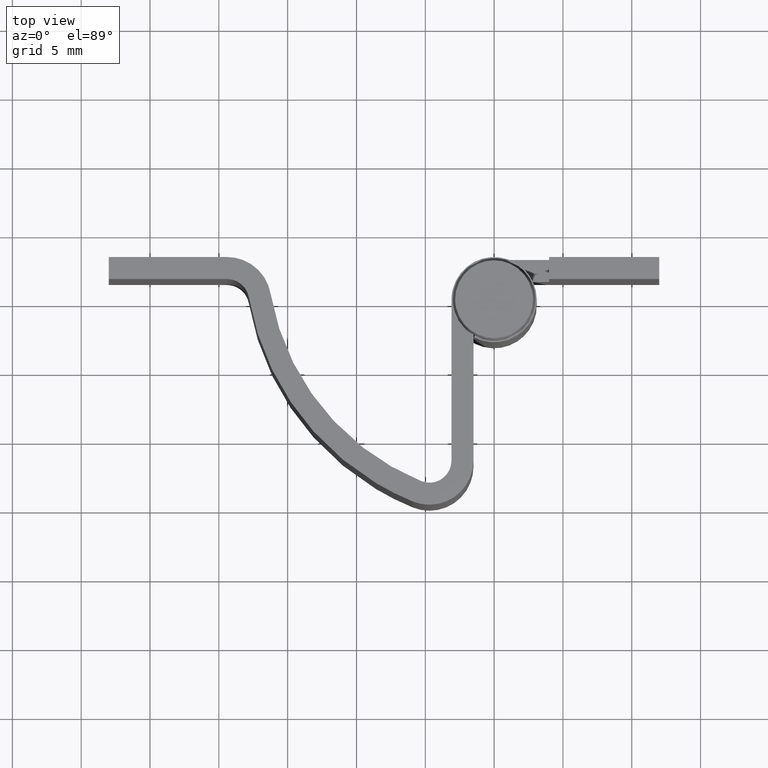
[diagram: clean part render]
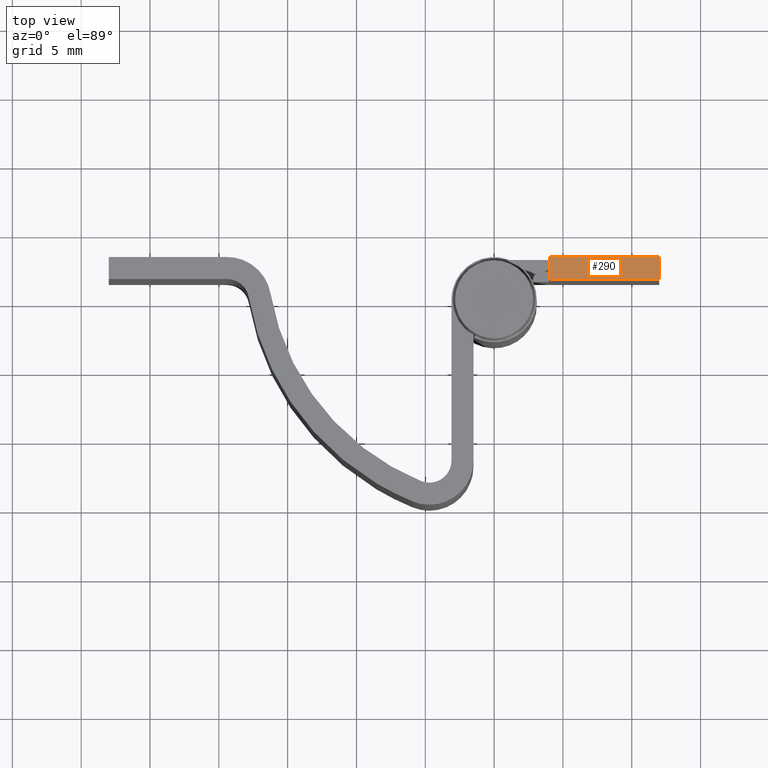
[diagram: same view with one face highlighted and labeled with its STEP entity id]
A machine part, top view. The second image highlights one B-rep face of the part: STEP entity #290.
In plain terms, the highlighted face is a freeform B-spline surface patch.
Its self-contained STEP definition (entity closure, byte-faithful):
#142=CARTESIAN_POINT('',(4.0,1.500000000000085,28.000008000000001));
#143=VERTEX_POINT('',#142);
#144=CARTESIAN_POINT('',(4.0,3.099998000000000,28.000008000000001));
#145=VERTEX_POINT('',#144);
#146=CARTESIAN_POINT('',(4.0,1.500000000000085,28.000008000000001));
#147=CARTESIAN_POINT('',(4.0,3.099998000000000,28.000008000000001));
#148=QUASI_UNIFORM_CURVE('',1,(#146,#147),.UNSPECIFIED.,.F.,.U.);
#149=EDGE_CURVE('',#143,#145,#148,.T.);
#249=CARTESIAN_POINT('',(12.0,3.099998000000000,28.000008000000001));
#250=VERTEX_POINT('',#249);
#256=CARTESIAN_POINT('',(12.0,1.500000000000000,28.000008000000001));
#257=VERTEX_POINT('',#256);
#258=CARTESIAN_POINT('',(12.0,1.500000000000000,28.000008000000001));
#259=CARTESIAN_POINT('',(12.0,3.099998000000000,28.000008000000001));
#260=QUASI_UNIFORM_CURVE('',1,(#258,#259),.UNSPECIFIED.,.F.,.U.);
#261=EDGE_CURVE('',#257,#250,#260,.T.);
#271=CARTESIAN_POINT('',(12.399599984494451,3.179917896998894,28.000008000000001));
#272=CARTESIAN_POINT('',(3.600399800928832,3.179917896998894,28.000008000000001));
#273=CARTESIAN_POINT('',(12.399599984494451,1.420080060085816,28.000008000000001));
#274=CARTESIAN_POINT('',(3.600399800928832,1.420080060085816,28.000008000000001));
#275=B_SPLINE_SURFACE_WITH_KNOTS('',1,1,((#271,#273),(#272,#274)),.UNSPECIFIED.,.F.,.F.,.U.,(2,2),(2,2),(0.0,8.799200183565615),(0.041708334948495,0.958291687403247),.UNSPECIFIED.);
#276=ORIENTED_EDGE('',*,*,#149,.F.);
#277=CARTESIAN_POINT('',(4.0,1.500000000000085,28.000008000000001));
#278=CARTESIAN_POINT('',(12.0,1.500000000000000,28.000008000000001));
#279=QUASI_UNIFORM_CURVE('',1,(#277,#278),.UNSPECIFIED.,.F.,.U.);
#280=EDGE_CURVE('',#143,#257,#279,.T.);
#281=ORIENTED_EDGE('',*,*,#280,.T.);
#282=ORIENTED_EDGE('',*,*,#261,.T.);
#283=CARTESIAN_POINT('',(12.0,3.099998000000000,28.000008000000001));
#284=CARTESIAN_POINT('',(4.0,3.099998000000000,28.000008000000001));
#285=QUASI_UNIFORM_CURVE('',1,(#283,#284),.UNSPECIFIED.,.F.,.U.);
#286=EDGE_CURVE('',#250,#145,#285,.T.);
#287=ORIENTED_EDGE('',*,*,#286,.T.);
#288=EDGE_LOOP('',(#276,#281,#282,#287));
#289=FACE_OUTER_BOUND('',#288,.T.);
#290=ADVANCED_FACE('',(#289),#275,.T.);